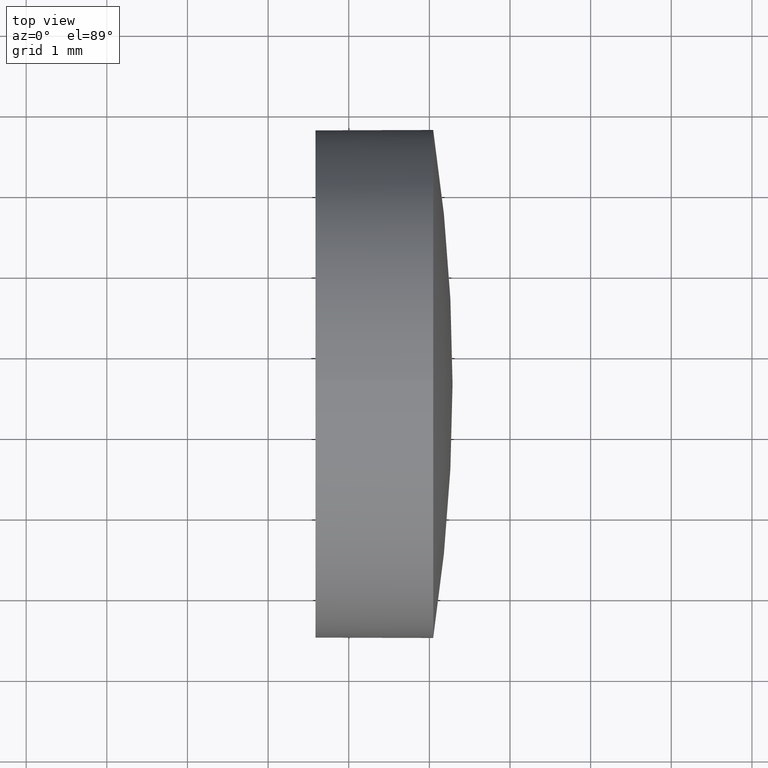
[diagram: clean part render]
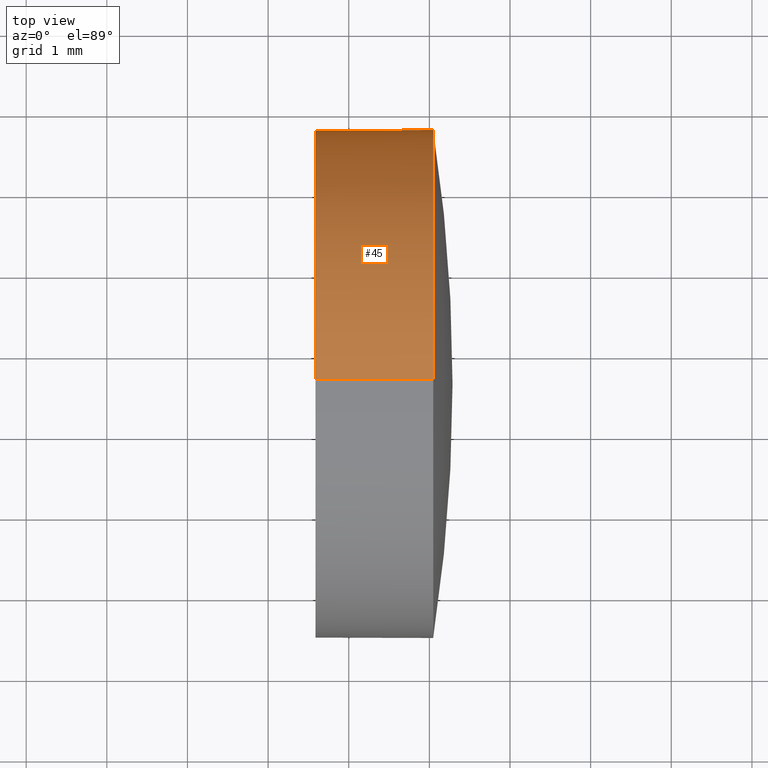
[diagram: same view with one face highlighted and labeled with its STEP entity id]
A machine part, top view. The second image highlights one B-rep face of the part: STEP entity #45.
In plain terms, the highlighted cylindrical surface (partial cylindrical patch) has radius 3.15 mm, axis along (-1, -0, -0).
Its self-contained STEP definition (entity closure, byte-faithful):
#3 = DIRECTION ( 'NONE',  ( -1.000000000000000000, -0.0000000000000000000, -0.0000000000000000000 ) ) ;
#9 = VERTEX_POINT ( 'NONE', #120 ) ;
#15 = CIRCLE ( 'NONE', #32, 3.149999999999986100 ) ;
#17 = EDGE_CURVE ( 'NONE', #9, #178, #30, .T. ) ;
#19 = DIRECTION ( 'NONE',  ( -1.000000000000000000, -0.0000000000000000000, -0.0000000000000000000 ) ) ;
#21 = CIRCLE ( 'NONE', #158, 3.149999999999986100 ) ;
#25 = EDGE_CURVE ( 'NONE', #9, #143, #96, .T. ) ;
#30 = CIRCLE ( 'NONE', #109, 3.149999999999986100 ) ;
#32 = AXIS2_PLACEMENT_3D ( 'NONE', #140, #44, #172 ) ;
#33 = VERTEX_POINT ( 'NONE', #58 ) ;
#34 = CYLINDRICAL_SURFACE ( 'NONE', #142, 3.149999999999986100 ) ;
#41 = CARTESIAN_POINT ( 'NONE',  ( 622.7257746314247700, 93.63142839999422100, 0.0000000000000000000 ) ) ;
#44 = DIRECTION ( 'NONE',  ( -1.000000000000000000, -0.0000000000000000000, -0.0000000000000000000 ) ) ;
#45 = ADVANCED_FACE ( 'NONE', ( #106 ), #34, .T. ) ;
#46 = LINE ( 'NONE', #48, #67 ) ;
#47 = VERTEX_POINT ( 'NONE', #154 ) ;
#48 = CARTESIAN_POINT ( 'NONE',  ( 622.7257746314247700, 93.63142839999422100, -3.149999999999986100 ) ) ;
#49 = DIRECTION ( 'NONE',  ( 0.0000000000000000000, 0.0000000000000000000, 1.000000000000000000 ) ) ;
#50 = CARTESIAN_POINT ( 'NONE',  ( 623.5874028010093800, 93.63142839999422100, 3.149999999999986100 ) ) ;
#55 = ORIENTED_EDGE ( 'NONE', *, *, #25, .F. ) ;
#58 = CARTESIAN_POINT ( 'NONE',  ( 625.0474028010091800, 93.63142839999422100, -3.149999999999986100 ) ) ;
#59 = VECTOR ( 'NONE', #3, 1000.000000000000000 ) ;
#62 = ORIENTED_EDGE ( 'NONE', *, *, #114, .T. ) ;
#67 = VECTOR ( 'NONE', #128, 1000.000000000000000 ) ;
#78 = CARTESIAN_POINT ( 'NONE',  ( 625.0474028010091800, 96.78142839999429700, 3.857637417314025600E-016 ) ) ;
#79 = CARTESIAN_POINT ( 'NONE',  ( 625.0474028010091800, 93.63142839999422100, 0.0000000000000000000 ) ) ;
#81 = EDGE_CURVE ( 'NONE', #143, #47, #15, .T. ) ;
#85 = ORIENTED_EDGE ( 'NONE', *, *, #93, .T. ) ;
#93 = EDGE_CURVE ( 'NONE', #178, #33, #21, .T. ) ;
#96 = LINE ( 'NONE', #121, #59 ) ;
#100 = EDGE_LOOP ( 'NONE', ( #85, #62, #159, #55, #182 ) ) ;
#106 = FACE_OUTER_BOUND ( 'NONE', #100, .T. ) ;
#109 = AXIS2_PLACEMENT_3D ( 'NONE', #166, #135, #163 ) ;
#114 = EDGE_CURVE ( 'NONE', #33, #47, #46, .T. ) ;
#119 = DIRECTION ( 'NONE',  ( 0.0000000000000000000, 0.0000000000000000000, 1.000000000000000000 ) ) ;
#120 = CARTESIAN_POINT ( 'NONE',  ( 625.0474028010091800, 93.63142839999422100, 3.149999999999986100 ) ) ;
#121 = CARTESIAN_POINT ( 'NONE',  ( 622.7257746314247700, 93.63142839999422100, 3.149999999999986100 ) ) ;
#128 = DIRECTION ( 'NONE',  ( -1.000000000000000000, -0.0000000000000000000, -0.0000000000000000000 ) ) ;
#135 = DIRECTION ( 'NONE',  ( -1.000000000000000000, -0.0000000000000000000, -0.0000000000000000000 ) ) ;
#140 = CARTESIAN_POINT ( 'NONE',  ( 623.5874028010093800, 93.63142839999422100, 0.0000000000000000000 ) ) ;
#142 = AXIS2_PLACEMENT_3D ( 'NONE', #41, #19, #119 ) ;
#143 = VERTEX_POINT ( 'NONE', #50 ) ;
#154 = CARTESIAN_POINT ( 'NONE',  ( 623.5874028010093800, 93.63142839999422100, -3.149999999999986100 ) ) ;
#158 = AXIS2_PLACEMENT_3D ( 'NONE', #79, #160, #49 ) ;
#159 = ORIENTED_EDGE ( 'NONE', *, *, #81, .F. ) ;
#160 = DIRECTION ( 'NONE',  ( -1.000000000000000000, -0.0000000000000000000, -0.0000000000000000000 ) ) ;
#163 = DIRECTION ( 'NONE',  ( 0.0000000000000000000, 0.0000000000000000000, 1.000000000000000000 ) ) ;
#166 = CARTESIAN_POINT ( 'NONE',  ( 625.0474028010091800, 93.63142839999422100, 0.0000000000000000000 ) ) ;
#172 = DIRECTION ( 'NONE',  ( 0.0000000000000000000, 0.0000000000000000000, 1.000000000000000000 ) ) ;
#178 = VERTEX_POINT ( 'NONE', #78 ) ;
#182 = ORIENTED_EDGE ( 'NONE', *, *, #17, .T. ) ;